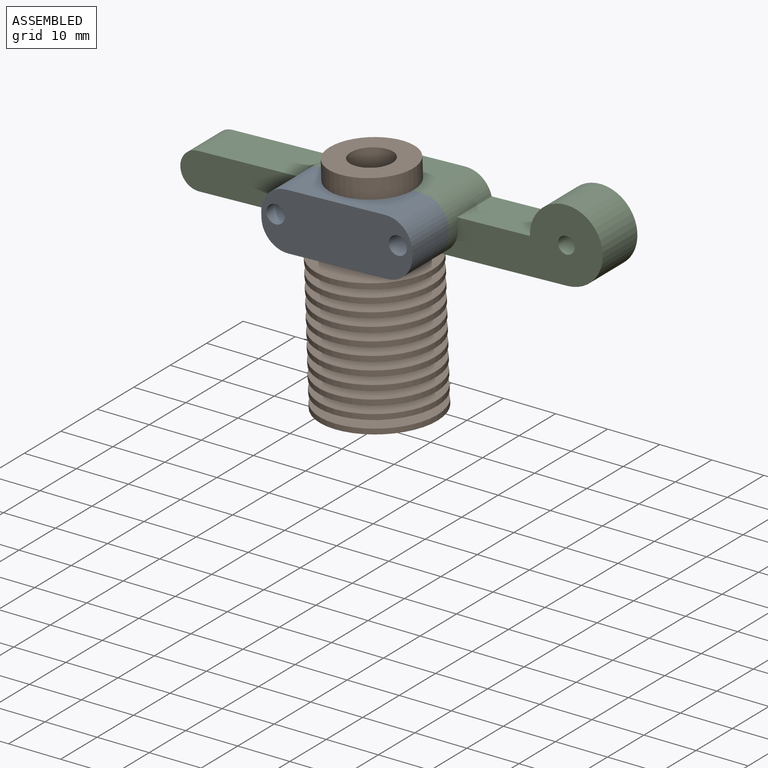
[diagram: assembled view]
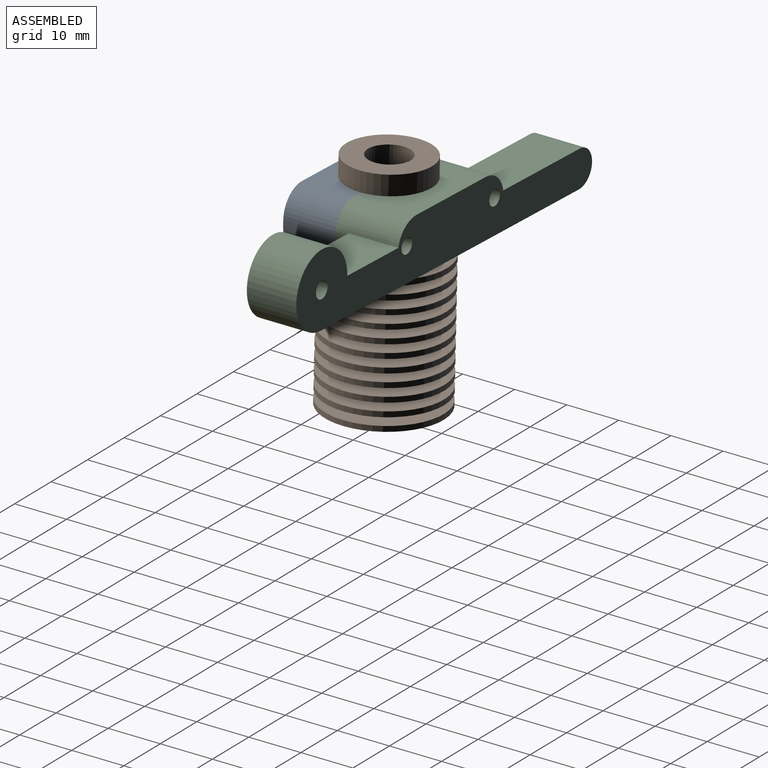
[diagram: assembled view, second angle]
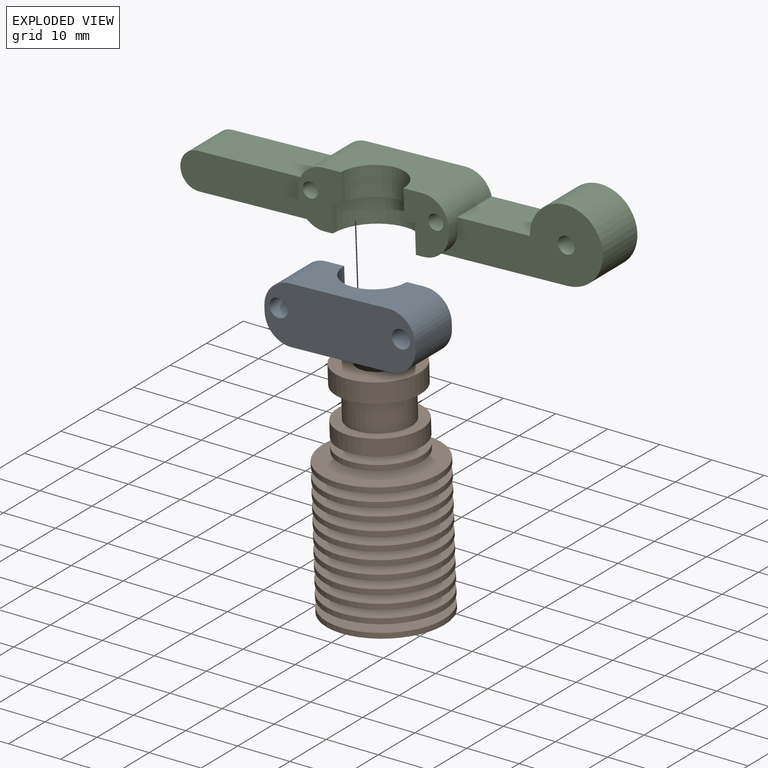
[diagram: exploded view]
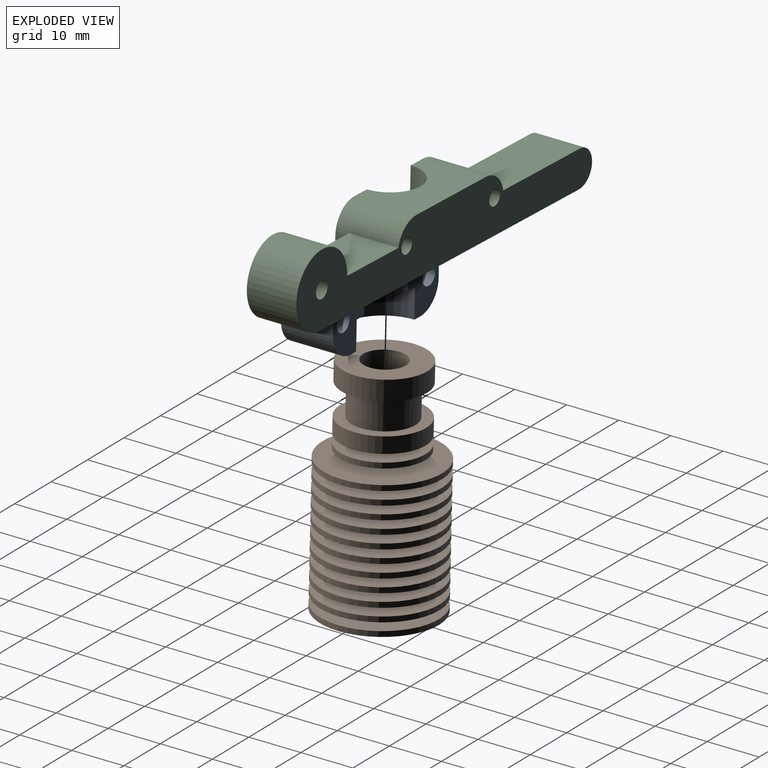
[diagram: exploded view, second angle]
ASSEMBLY  parts=3 mates=2
PART A: 16 faces, bbox 29x11x10 mm
  f0: plane 11x8.5mm, normal (0,0,1), area 62.1mm2, adj f1,f2,f5,f6,f7,f9,f10,f11
  f1: plane 19x10mm, normal (0,-1,0), area 89.5mm2, adj f0,f3,f4,f5,f11,f12
  f2: plane 19x10mm, normal (0,1,0), area 133.5mm2, adj f0,f3,f4,f7,f10,f13
  f3: plane 11x8.5mm, normal (0,0,1), area 62.1mm2, adj f1,f2,f5,f6,f7,f8,f12,f13
  f4: plane 29x11mm, normal (0,0,-1), area 278.3mm2, adj f1,f2,f8,f9,f10,f11,f12,f13
  f5: cylinder r=8mm len=16mm, axis (0,-1,0), area 138.2mm2, adj f0,f1,f3,f6
  f6: plane 16x8mm, normal (0,-1,0), area 44mm2, adj f0,f3,f5,f7
  f7: cylinder r=6mm len=12mm, axis (0,1,0), area 103.7mm2, adj f0,f2,f3,f6
  f8: plane 10x1mm, normal (-1,0,0), area 10mm2, adj f3,f4,f12,f13
  f9: plane 10x1mm, normal (1,0,0), area 10mm2, adj f0,f4,f10,f11
  f10: cylinder r=5mm len=10mm, axis (0,0,-1), area 78.5mm2, adj f0,f2,f4,f9
  f11: cylinder r=5mm len=10mm, axis (0,0,1), area 78.5mm2, adj f0,f1,f4,f9
  f12: cylinder r=5mm len=10mm, axis (0,0,1), area 78.5mm2, adj f1,f3,f4,f8
  f13: cylinder r=5mm len=10mm, axis (0,0,-1), area 78.5mm2, adj f2,f3,f4,f8
  f14: cylinder r=1.75mm len=10mm, axis (0,0,1), area 110mm2, adj f0,f4
  f15: cylinder r=1.75mm len=10mm, axis (0,0,1), area 110mm2, adj f3,f4
PART B: 60 faces, bbox 22.3x22.3x42.7 mm
  f0: cylinder r=2.1mm len=18.9mm, axis (0,0,1), area 249.4mm2, adj f57,f59
  f1: cylinder r=8mm len=16mm, axis (0,0,1), area 186mm2, adj f2,f3
  f2: plane 16x16mm, normal (0,0,-1), area 88mm2, adj f1,f4
  f3: plane 16x16mm, normal (0,0,1), area 150.8mm2, adj f1,f56
  f4: cylinder r=6mm len=12mm, axis (0,0,1), area 226.2mm2, adj f2,f7
  f5: cylinder r=8mm len=16mm, axis (0,0,1), area 150.8mm2, adj f6,f7
  f6: plane 16x16mm, normal (0,0,-1), area 150.8mm2, adj f5,f55
  f7: plane 16x16mm, normal (0,0,1), area 88mm2, adj f4,f5
  f8: plane 22.3x22.3mm, normal (0,0,-1), area 362.3mm2, adj f9,f58
  f9: cylinder r=11.15mm len=22.3mm, axis (0,0,1), area 70.1mm2, adj f8,f10
  f10: plane 22.3x22.3mm, normal (0,0,1), area 277.5mm2, adj f9,f11
  f11: cone r=5.89mm half-angle=4.2deg, axis (0,0,-1), area 56.2mm2, adj f10,f12
  f12: plane 22.3x22.3mm, normal (0,0,-1), area 281.5mm2, adj f11,f13
  f13: cylinder r=11.15mm len=22.3mm, axis (0,0,1), area 70.1mm2, adj f12,f14
  f14: plane 22.3x22.3mm, normal (0,0,1), area 284.2mm2, adj f13,f15
  f15: cone r=5.71mm half-angle=4.2deg, axis (0,0,-1), area 54.5mm2, adj f14,f16
  f16: plane 22.3x22.3mm, normal (0,0,-1), area 288.2mm2, adj f15,f17
  f17: cylinder r=11.15mm len=22.3mm, axis (0,0,1), area 70.1mm2, adj f16,f18
  f18: plane 22.3x22.3mm, normal (0,0,1), area 290.8mm2, adj f17,f19
  f19: cone r=5.53mm half-angle=4.2deg, axis (0,0,-1), area 52.7mm2, adj f18,f20
  f20: plane 22.3x22.3mm, normal (0,0,-1), area 294.6mm2, adj f19,f21
  f21: cylinder r=11.15mm len=22.3mm, axis (0,0,1), area 70.1mm2, adj f20,f22
  f22: plane 22.3x22.3mm, normal (0,0,1), area 297.1mm2, adj f21,f23
  f23: cone r=5.35mm half-angle=4.2deg, axis (0,0,-1), area 51mm2, adj f22,f24
  f24: plane 22.3x22.3mm, normal (0,0,-1), area 300.8mm2, adj f23,f25
  f25: cylinder r=11.15mm len=22.3mm, axis (0,0,1), area 70.1mm2, adj f24,f26
  f26: plane 22.3x22.3mm, normal (0,0,1), area 303.2mm2, adj f25,f27
  f27: cone r=5.16mm half-angle=4.2deg, axis (0,0,-1), area 49.3mm2, adj f26,f28
  f28: plane 22.3x22.3mm, normal (0,0,-1), area 306.8mm2, adj f27,f29
  f29: cylinder r=11.15mm len=22.3mm, axis (0,0,1), area 70.1mm2, adj f28,f30
  f30: plane 22.3x22.3mm, normal (0,0,1), area 309.1mm2, adj f29,f31
  f31: cone r=4.98mm half-angle=4.2deg, axis (0,0,-1), area 47.6mm2, adj f30,f32
  f32: plane 22.3x22.3mm, normal (0,0,-1), area 312.6mm2, adj f31,f33
  f33: cylinder r=11.15mm len=22.3mm, axis (0,0,1), area 70.1mm2, adj f32,f34
  f34: plane 22.3x22.3mm, normal (0,0,1), area 314.9mm2, adj f33,f35
  f35: cone r=4.8mm half-angle=4.2deg, axis (0,0,-1), area 45.9mm2, adj f34,f36
  f36: plane 22.3x22.3mm, normal (0,0,-1), area 318.2mm2, adj f35,f37
  f37: cylinder r=11.15mm len=22.3mm, axis (0,0,1), area 70.1mm2, adj f36,f38
  f38: plane 22.3x22.3mm, normal (0,0,1), area 320.4mm2, adj f37,f39
  f39: cone r=4.62mm half-angle=4.2deg, axis (0,0,-1), area 44.2mm2, adj f38,f40
  f40: plane 22.3x22.3mm, normal (0,0,-1), area 323.6mm2, adj f39,f41
  f41: cylinder r=11.15mm len=22.3mm, axis (0,0,1), area 70.1mm2, adj f40,f42
  f42: plane 22.3x22.3mm, normal (0,0,1), area 325.7mm2, adj f41,f43
  f43: cone r=4.44mm half-angle=4.2deg, axis (0,0,-1), area 42.4mm2, adj f42,f44
  f44: plane 22.3x22.3mm, normal (0,0,-1), area 328.7mm2, adj f43,f45
  f45: cylinder r=11.15mm len=22.3mm, axis (0,0,1), area 70.1mm2, adj f44,f46
  f46: plane 22.3x22.3mm, normal (0,0,1), area 330.8mm2, adj f45,f47
  f47: cone r=4.25mm half-angle=4.2deg, axis (0,0,-1), area 40.7mm2, adj f46,f48
  f48: plane 22.3x22.3mm, normal (0,0,-1), area 333.7mm2, adj f47,f49
  f49: cylinder r=11.15mm len=22.3mm, axis (0,0,1), area 70.1mm2, adj f48,f50
  f50: plane 22.3x22.3mm, normal (0,0,1), area 335.6mm2, adj f49,f51
  f51: cone r=4.07mm half-angle=4.2deg, axis (0,0,-1), area 39mm2, adj f50,f52
  f52: plane 16x16mm, normal (0,0,-1), area 149mm2, adj f51,f53
  f53: cylinder r=8mm len=16mm, axis (0,0,1), area 50.3mm2, adj f52,f54
  f54: plane 16x16mm, normal (0,0,1), area 150.8mm2, adj f53,f55
  f55: cylinder r=4mm len=8mm, axis (0,0,1), area 37.7mm2, adj f6,f54
  f56: cylinder r=4mm len=8mm, axis (0,0,1), area 153.3mm2, adj f3,f57
  f57: cone r=4.1mm half-angle=45deg, axis (0,0,1), area 51.5mm2, adj f0,f56
  f58: cylinder r=3mm len=14.9mm, axis (0,0,-1), area 280.9mm2, adj f8,f59
  f59: cone r=3.1mm half-angle=45deg, axis (0,0,-1), area 20.4mm2, adj f0,f58
PART C: 23 faces, bbox 81.3x12x14 mm
  f0: plane 21x9.5mm, normal (0,0,1), area 199.5mm2, adj f1,f9,f11,f20
  f1: plane 29.4x7mm, normal (0,-1,0), area 170.9mm2, adj f0,f5,f9,f16,f19,f20
  f2: plane 11x8.5mm, normal (0,-1,0), area 65.2mm2, adj f3,f4,f5,f13,f14,f15,f18,f21
  f3: cylinder r=6mm len=12mm, axis (0,0,1), area 103.7mm2, adj f2,f4,f12,f14
  f4: plane 19x12mm, normal (0,0,1), area 171.5mm2, adj f2,f3,f11,f12,f20,f21
  f5: plane 70.8x12mm, normal (0,0,-1), area 619.5mm2, adj f1,f2,f6,f9,f10,f11,f12,f13
  f6: cylinder r=7mm len=14mm, axis (0,1,0), area 313.4mm2, adj f5,f7,f10,f11
  f7: plane 14x9.5mm, normal (0,0,1), area 133mm2, adj f6,f10,f11,f21
  f8: cylinder r=1.6mm len=9.5mm, axis (0,1,0), area 95.5mm2, adj f10,f11
  f9: cylinder r=3.5mm len=9.5mm, axis (0,1,0), area 104.5mm2, adj f0,f1,f5,f11
  f10: plane 32.9x14mm, normal (0,-1,0), area 259.1mm2, adj f5,f6,f7,f8,f15,f21,f22
  f11: plane 81.3x14mm, normal (0,1,0), area 714.4mm2, adj f0,f4,f5,f6,f7,f8,f9,f17
  f12: plane 11x8.5mm, normal (0,-1,0), area 65.2mm2, adj f3,f4,f5,f13,f14,f16,f17,f19
  f13: cylinder r=8mm len=16mm, axis (0,0,-1), area 138.2mm2, adj f2,f5,f12,f14
  f14: plane 16x8mm, normal (0,0,-1), area 44mm2, adj f2,f3,f12,f13
  f15: plane 2.5x1mm, normal (1,0,0), area 2.5mm2, adj f2,f10,f21,f22
  f16: plane 2.5x1mm, normal (-1,0,0), area 2.5mm2, adj f1,f12,f19,f20
  f17: cylinder r=1.45mm len=12mm, axis (0,-1,0), area 109.3mm2, adj f11,f12
  f18: cylinder r=1.45mm len=12mm, axis (0,-1,0), area 109.3mm2, adj f2,f11
  f19: cylinder r=5mm len=5mm, axis (0,1,0), area 19.6mm2, adj f1,f5,f12,f16
  f20: cylinder r=5mm len=12mm, axis (0,-1,0), area 84.7mm2, adj f0,f1,f4,f11,f12,f16
  f21: cylinder r=5mm len=12mm, axis (0,-1,0), area 84.7mm2, adj f2,f4,f7,f10,f11,f15
  f22: cylinder r=5mm len=5mm, axis (0,1,0), area 19.6mm2, adj f2,f5,f10,f15
PLACE A rot(axis=(-0.01,0.71,0.71),178.6deg) t=(-37.45,-48.35,-49.73)mm
PLACE B rot(axis=(0.02,0,-1),180deg) t=(-50.47,-38.35,-35.28)mm
PLACE C rot(axis=(0,-1,0),2deg) t=(-50.06,-31.1,-46.68)mm
MATE fastened B.f0 <-> C.f3  axis (-0.04,0,1) through (-50.12,-38.35,-44.98)mm
MATE fastened A.f6 <-> C.f14  axis (-0.04,0,1) through (-56.13,-38.35,-44.89)mm
